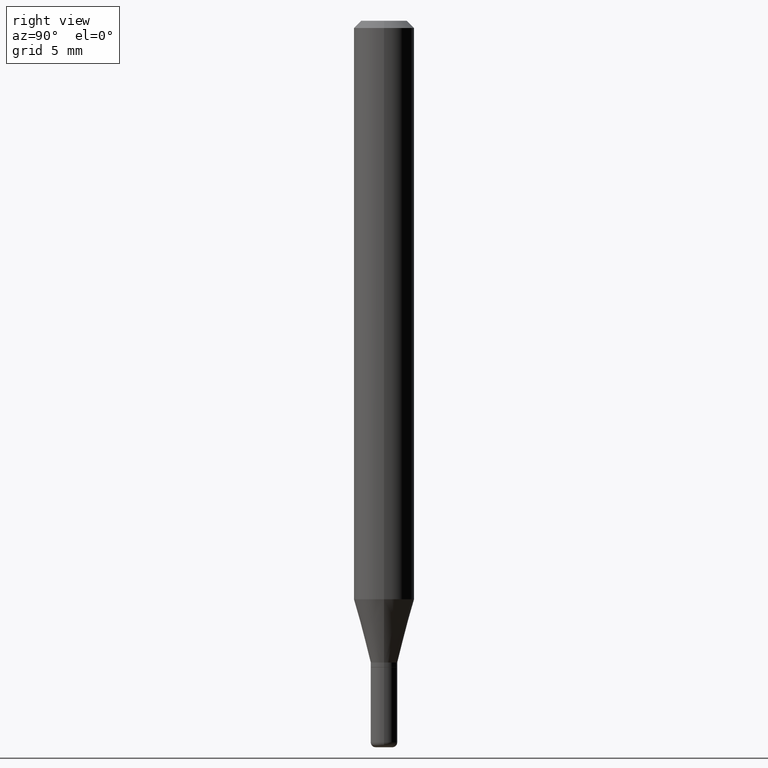
[diagram: clean part render]
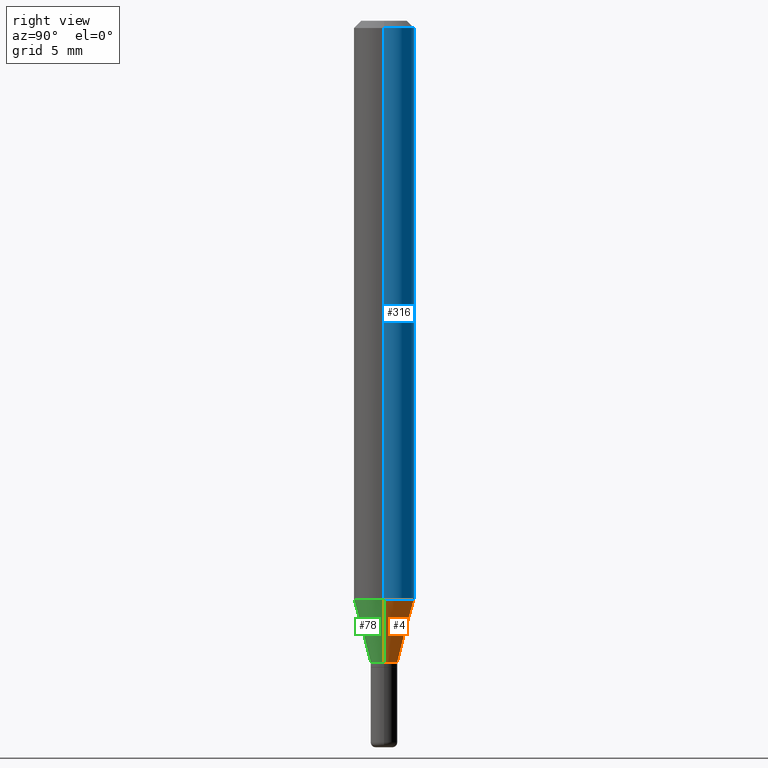
[diagram: same view with three faces highlighted in distinct colors, each labeled with its STEP entity id]
A machine part, right view with three faces highlighted in distinct colors.
Their STEP definitions:

[orange] entity #4 — the highlighted conical surface has half-angle 15 deg.
#4 = ADVANCED_FACE ( 'NONE', ( #64 ), #509, .T. ) ;
#15 = CARTESIAN_POINT ( 'NONE',  ( 0.06250000000000000000, -4.606584440064116240E-15, -1.194378221735089340 ) ) ;
#23 = ORIENTED_EDGE ( 'NONE', *, *, #339, .F. ) ;
#25 = VERTEX_POINT ( 'NONE', #55 ) ;
#48 = AXIS2_PLACEMENT_3D ( 'NONE', #75, #152, #391 ) ;
#49 = VECTOR ( 'NONE', #438, 39.37007874015748854 ) ;
#55 = CARTESIAN_POINT ( 'NONE',  ( -0.06250000000000000000, -3.726060062858662743E-15, -1.194378221735089340 ) ) ;
#64 = FACE_OUTER_BOUND ( 'NONE', #440, .T. ) ;
#65 = AXIS2_PLACEMENT_3D ( 'NONE', #349, #135, #99 ) ;
#74 = LINE ( 'NONE', #518, #133 ) ;
#75 = CARTESIAN_POINT ( 'NONE',  ( 3.240246168195306775E-29, -4.626212773967169051E-15, -1.325000000000000178 ) ) ;
#85 = DIRECTION ( 'NONE',  ( -2.445468806185136597E-29, 3.491481338843145583E-15, 1.000000000000000000 ) ) ;
#99 = DIRECTION ( 'NONE',  ( 1.000000000000000000, -6.982962677686254878E-15, 0.000000000000000000 ) ) ;
#107 = CIRCLE ( 'NONE', #431, 0.06250000000000000000 ) ;
#132 = ORIENTED_EDGE ( 'NONE', *, *, #163, .T. ) ;
#133 = VECTOR ( 'NONE', #425, 39.37007874015748854 ) ;
#135 = DIRECTION ( 'NONE',  ( -2.445468806185136597E-29, 3.491481338843145583E-15, 1.000000000000000000 ) ) ;
#136 = EDGE_CURVE ( 'NONE', #204, #499, #74, .T. ) ;
#145 = VERTEX_POINT ( 'NONE', #388 ) ;
#152 = DIRECTION ( 'NONE',  ( -2.445468806185136597E-29, 3.491481338843145583E-15, 1.000000000000000000 ) ) ;
#163 = EDGE_CURVE ( 'NONE', #204, #145, #386, .T. ) ;
#167 = LINE ( 'NONE', #443, #49 ) ;
#169 = DIRECTION ( 'NONE',  ( 1.000000000000000000, -6.982962677686270655E-15, 0.000000000000000000 ) ) ;
#183 = ORIENTED_EDGE ( 'NONE', *, *, #136, .F. ) ;
#204 = VERTEX_POINT ( 'NONE', #231 ) ;
#231 = CARTESIAN_POINT ( 'NONE',  ( 0.02749999999999995851, -4.818244247603540754E-15, -1.325000000000000178 ) ) ;
#263 = ORIENTED_EDGE ( 'NONE', *, *, #268, .T. ) ;
#268 = EDGE_CURVE ( 'NONE', #145, #25, #167, .T. ) ;
#339 = EDGE_CURVE ( 'NONE', #499, #25, #107, .T. ) ;
#349 = CARTESIAN_POINT ( 'NONE',  ( 3.240246168195306775E-29, -4.626212773967169051E-15, -1.325000000000000178 ) ) ;
#386 = CIRCLE ( 'NONE', #48, 0.02749999999999995851 ) ;
#388 = CARTESIAN_POINT ( 'NONE',  ( -0.02749999999999995851, -4.078436792245901838E-15, -1.325000000000000178 ) ) ;
#391 = DIRECTION ( 'NONE',  ( 1.000000000000000000, -6.982962677686254878E-15, 0.000000000000000000 ) ) ;
#425 = DIRECTION ( 'NONE',  ( 0.2588190451025206840, 1.565188264969626504E-15, 0.9659258262890682012 ) ) ;
#431 = AXIS2_PLACEMENT_3D ( 'NONE', #441, #85, #169 ) ;
#438 = DIRECTION ( 'NONE',  ( -0.2588190451025206840, 5.211531920934545520E-15, 0.9659258262890682012 ) ) ;
#440 = EDGE_LOOP ( 'NONE', ( #132, #263, #23, #183 ) ) ;
#441 = CARTESIAN_POINT ( 'NONE',  ( 2.920814684040035017E-29, -4.170149272708725360E-15, -1.194378221735089340 ) ) ;
#443 = CARTESIAN_POINT ( 'NONE',  ( -0.02749999999999995851, -4.430813521633141720E-15, -1.325000000000000178 ) ) ;
#499 = VERTEX_POINT ( 'NONE', #15 ) ;
#509 = CONICAL_SURFACE ( 'NONE', #65, 0.02749999999999995851, 0.2617993877991494078 ) ;
#518 = CARTESIAN_POINT ( 'NONE',  ( 0.02749999999999995851, -4.818244247603540754E-15, -1.325000000000000178 ) ) ;

[blue] entity #316 — the highlighted cylindrical surface (edge-blend (fillet) strip) has radius 1.5875 mm, axis along (-0, 0, 1).
#15 = CARTESIAN_POINT ( 'NONE',  ( 0.06250000000000000000, -4.606584440064116240E-15, -1.194378221735089340 ) ) ;
#25 = VERTEX_POINT ( 'NONE', #55 ) ;
#26 = AXIS2_PLACEMENT_3D ( 'NONE', #116, #392, #516 ) ;
#41 = CARTESIAN_POINT ( 'NONE',  ( -0.06250000000000000000, 4.440892098500626162E-16, -3.074334431409316114E-30 ) ) ;
#55 = CARTESIAN_POINT ( 'NONE',  ( -0.06250000000000000000, -3.726060062858662743E-15, -1.194378221735089340 ) ) ;
#83 = FACE_OUTER_BOUND ( 'NONE', #495, .T. ) ;
#85 = DIRECTION ( 'NONE',  ( -2.445468806185136597E-29, 3.491481338843145583E-15, 1.000000000000000000 ) ) ;
#92 = EDGE_CURVE ( 'NONE', #418, #453, #189, .T. ) ;
#106 = VECTOR ( 'NONE', #366, 39.37007874015748143 ) ;
#107 = CIRCLE ( 'NONE', #431, 0.06250000000000000000 ) ;
#116 = CARTESIAN_POINT ( 'NONE',  ( 3.668203209277632395E-31, -5.237222008264614861E-17, -0.01499999999999970281 ) ) ;
#125 = DIRECTION ( 'NONE',  ( 1.000000000000000000, -6.982962677686266711E-15, 4.876176775795935793E-29 ) ) ;
#143 = ORIENTED_EDGE ( 'NONE', *, *, #212, .F. ) ;
#169 = DIRECTION ( 'NONE',  ( 1.000000000000000000, -6.982962677686270655E-15, 0.000000000000000000 ) ) ;
#189 = CIRCLE ( 'NONE', #26, 0.06250000000000000000 ) ;
#197 = AXIS2_PLACEMENT_3D ( 'NONE', #292, #286, #125 ) ;
#212 = EDGE_CURVE ( 'NONE', #499, #418, #383, .T. ) ;
#222 = DIRECTION ( 'NONE',  ( -2.445468806185136877E-29, 3.491481338843145188E-15, 1.000000000000000000 ) ) ;
#238 = LINE ( 'NONE', #41, #270 ) ;
#243 = ORIENTED_EDGE ( 'NONE', *, *, #92, .F. ) ;
#270 = VECTOR ( 'NONE', #222, 39.37007874015748143 ) ;
#286 = DIRECTION ( 'NONE',  ( -2.445468806185136597E-29, 3.491481338843145583E-15, 1.000000000000000000 ) ) ;
#292 = CARTESIAN_POINT ( 'NONE',  ( 0.000000000000000000, 0.000000000000000000, 0.000000000000000000 ) ) ;
#316 = ADVANCED_FACE ( 'NONE', ( #83 ), #369, .T. ) ;
#336 = CARTESIAN_POINT ( 'NONE',  ( 0.06250000000000000000, -4.888073874380378612E-16, -0.01499999999999970281 ) ) ;
#339 = EDGE_CURVE ( 'NONE', #499, #25, #107, .T. ) ;
#362 = ORIENTED_EDGE ( 'NONE', *, *, #398, .T. ) ;
#366 = DIRECTION ( 'NONE',  ( -2.445468806185136877E-29, 3.491481338843145188E-15, 1.000000000000000000 ) ) ;
#369 = CYLINDRICAL_SURFACE ( 'NONE', #197, 0.06250000000000000000 ) ;
#383 = LINE ( 'NONE', #445, #106 ) ;
#392 = DIRECTION ( 'NONE',  ( -2.445468806185136597E-29, 3.491481338843145583E-15, 1.000000000000000000 ) ) ;
#398 = EDGE_CURVE ( 'NONE', #25, #453, #238, .T. ) ;
#418 = VERTEX_POINT ( 'NONE', #336 ) ;
#431 = AXIS2_PLACEMENT_3D ( 'NONE', #441, #85, #169 ) ;
#441 = CARTESIAN_POINT ( 'NONE',  ( 2.920814684040035017E-29, -4.170149272708725360E-15, -1.194378221735089340 ) ) ;
#442 = ORIENTED_EDGE ( 'NONE', *, *, #339, .T. ) ;
#445 = CARTESIAN_POINT ( 'NONE',  ( 0.06250000000000000000, -4.364351673553916694E-16, 3.047610484872459871E-30 ) ) ;
#453 = VERTEX_POINT ( 'NONE', #498 ) ;
#495 = EDGE_LOOP ( 'NONE', ( #442, #362, #243, #143 ) ) ;
#498 = CARTESIAN_POINT ( 'NONE',  ( -0.06250000000000000000, -1.667171536545623209E-15, -0.01499999999999970281 ) ) ;
#499 = VERTEX_POINT ( 'NONE', #15 ) ;
#516 = DIRECTION ( 'NONE',  ( 1.000000000000000000, -6.982962677686266711E-15, 0.000000000000000000 ) ) ;

[green] entity #78 — the highlighted conical surface has half-angle 15 deg.
#8 = ORIENTED_EDGE ( 'NONE', *, *, #268, .F. ) ;
#15 = CARTESIAN_POINT ( 'NONE',  ( 0.06250000000000000000, -4.606584440064116240E-15, -1.194378221735089340 ) ) ;
#16 = CIRCLE ( 'NONE', #269, 0.06250000000000000000 ) ;
#20 = ORIENTED_EDGE ( 'NONE', *, *, #365, .T. ) ;
#25 = VERTEX_POINT ( 'NONE', #55 ) ;
#32 = AXIS2_PLACEMENT_3D ( 'NONE', #38, #114, #467 ) ;
#38 = CARTESIAN_POINT ( 'NONE',  ( 3.240246168195306775E-29, -4.626212773967169051E-15, -1.325000000000000178 ) ) ;
#46 = CARTESIAN_POINT ( 'NONE',  ( 3.240246168195306775E-29, -4.626212773967169051E-15, -1.325000000000000178 ) ) ;
#49 = VECTOR ( 'NONE', #438, 39.37007874015748854 ) ;
#55 = CARTESIAN_POINT ( 'NONE',  ( -0.06250000000000000000, -3.726060062858662743E-15, -1.194378221735089340 ) ) ;
#68 = DIRECTION ( 'NONE',  ( -2.445468806185136597E-29, 3.491481338843145583E-15, 1.000000000000000000 ) ) ;
#74 = LINE ( 'NONE', #518, #133 ) ;
#78 = ADVANCED_FACE ( 'NONE', ( #184 ), #381, .T. ) ;
#94 = EDGE_LOOP ( 'NONE', ( #8, #20, #395, #328 ) ) ;
#111 = DIRECTION ( 'NONE',  ( 1.000000000000000000, -6.982962677686270655E-15, 0.000000000000000000 ) ) ;
#114 = DIRECTION ( 'NONE',  ( -2.445468806185136597E-29, 3.491481338843145583E-15, 1.000000000000000000 ) ) ;
#117 = EDGE_CURVE ( 'NONE', #25, #499, #16, .T. ) ;
#131 = DIRECTION ( 'NONE',  ( 1.000000000000000000, -6.982962677686254878E-15, 0.000000000000000000 ) ) ;
#133 = VECTOR ( 'NONE', #425, 39.37007874015748854 ) ;
#136 = EDGE_CURVE ( 'NONE', #204, #499, #74, .T. ) ;
#145 = VERTEX_POINT ( 'NONE', #388 ) ;
#167 = LINE ( 'NONE', #443, #49 ) ;
#184 = FACE_OUTER_BOUND ( 'NONE', #94, .T. ) ;
#190 = CIRCLE ( 'NONE', #479, 0.02749999999999995851 ) ;
#204 = VERTEX_POINT ( 'NONE', #231 ) ;
#231 = CARTESIAN_POINT ( 'NONE',  ( 0.02749999999999995851, -4.818244247603540754E-15, -1.325000000000000178 ) ) ;
#268 = EDGE_CURVE ( 'NONE', #145, #25, #167, .T. ) ;
#269 = AXIS2_PLACEMENT_3D ( 'NONE', #281, #68, #111 ) ;
#281 = CARTESIAN_POINT ( 'NONE',  ( 2.920814684040035017E-29, -4.170149272708725360E-15, -1.194378221735089340 ) ) ;
#328 = ORIENTED_EDGE ( 'NONE', *, *, #117, .F. ) ;
#365 = EDGE_CURVE ( 'NONE', #145, #204, #190, .T. ) ;
#381 = CONICAL_SURFACE ( 'NONE', #32, 0.02749999999999995851, 0.2617993877991494078 ) ;
#388 = CARTESIAN_POINT ( 'NONE',  ( -0.02749999999999995851, -4.078436792245901838E-15, -1.325000000000000178 ) ) ;
#395 = ORIENTED_EDGE ( 'NONE', *, *, #136, .T. ) ;
#425 = DIRECTION ( 'NONE',  ( 0.2588190451025206840, 1.565188264969626504E-15, 0.9659258262890682012 ) ) ;
#438 = DIRECTION ( 'NONE',  ( -0.2588190451025206840, 5.211531920934545520E-15, 0.9659258262890682012 ) ) ;
#443 = CARTESIAN_POINT ( 'NONE',  ( -0.02749999999999995851, -4.430813521633141720E-15, -1.325000000000000178 ) ) ;
#467 = DIRECTION ( 'NONE',  ( 1.000000000000000000, -6.982962677686254878E-15, 0.000000000000000000 ) ) ;
#479 = AXIS2_PLACEMENT_3D ( 'NONE', #46, #492, #131 ) ;
#492 = DIRECTION ( 'NONE',  ( -2.445468806185136597E-29, 3.491481338843145583E-15, 1.000000000000000000 ) ) ;
#499 = VERTEX_POINT ( 'NONE', #15 ) ;
#518 = CARTESIAN_POINT ( 'NONE',  ( 0.02749999999999995851, -4.818244247603540754E-15, -1.325000000000000178 ) ) ;